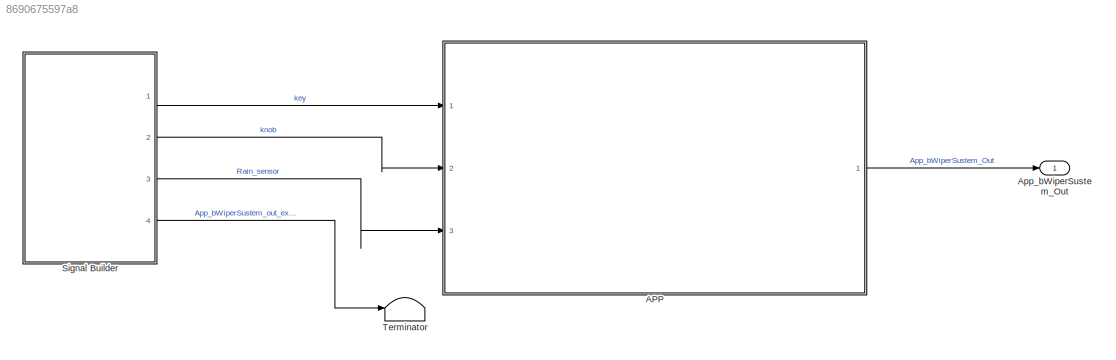
MODEL slx_8690675597a8
KIND model
CONFIG AbsTol = auto
CONFIG EnableMultiTasking = off
CONFIG FixedStep = 1e-3
CONFIG MaxStep = auto
CONFIG MinStep = auto
CONFIG RelTol = 1e-3
CONFIG SampleTimeConstraint = Unconstrained
CONFIG SolverName = FixedStepDiscrete
CONFIG StartTime = 0.0
CONFIG StopTime = 40
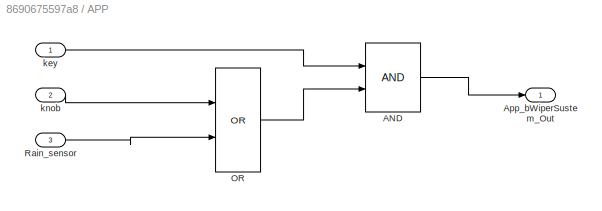
BLOCK [SubSystem] APP
  Ports = [3, 1]
  RequestExecContextInheritance = off
BLOCK [Logic] APP/AND
  AllPortsSameDT = off
  OutDataTypeStr = boolean
  Ports = [2, 1]
BLOCK [Outport] APP/App_bWiperSustem_Out
BLOCK [Logic] APP/OR
  AllPortsSameDT = off
  Operator = OR
  OutDataTypeStr = boolean
  Ports = [2, 1]
BLOCK [Inport] APP/Rain_sensor
  Port = 3
BLOCK [Inport] APP/key
BLOCK [Inport] APP/knob
  Port = 2
BLOCK [Outport] App_bWiperSustem_Out
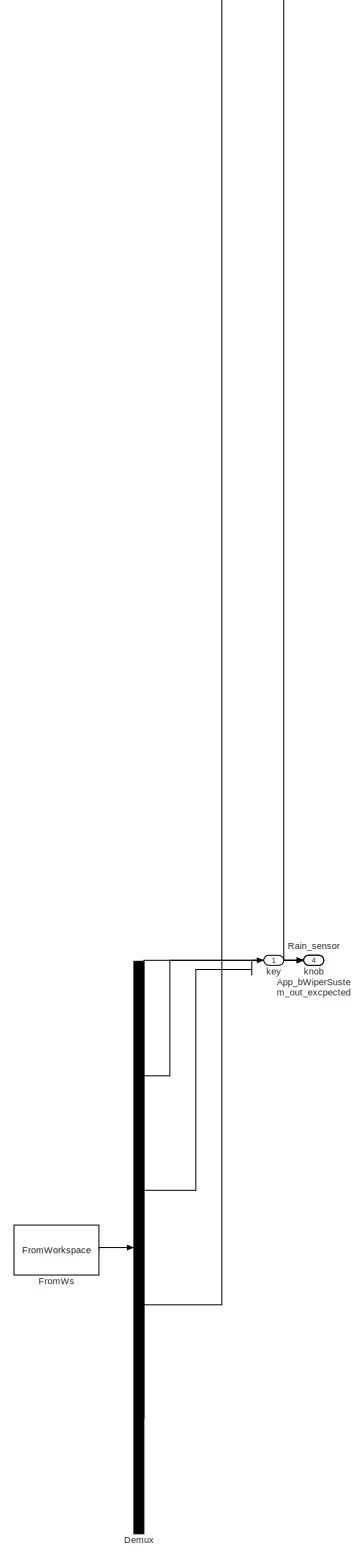
[diagram: Signal Builder - part 1/1, full width, bottom band]
BLOCK [SubSystem] Signal Builder
  ClipboardFcn = sigbuilder_block('clipboard');
  CloseFcn = sigbuilder_block('close');
  ContinueFcn = sigbuilder_block('continue');
  CopyFcn = sigbuilder_block('copy');
  DeleteFcn = sigbuilder_block('delete');
  LoadFcn = sigbuilder_block('load');
  MaskHideContents = on
  ModelCloseFcn = sigbuilder_block('modelClose');
  NameChangeFcn = sigbuilder_block('namechange');
  OpenFcn = sigbuilder_block('open',[60 102 550.8 400.2 ]);
  PauseFcn = sigbuilder_block('pause');
  Ports = [0, 4]
  PreSaveFcn = sigbuilder_block('preSave');
  RequestExecContextInheritance = off
  StartFcn = sigbuilder_block('start');
  StopFcn = sigbuilder_block('stop');
  Tag = STV Subsys
BLOCK [Outport] Signal Builder/App_bWiperSustem_out_excpected
  Port = 4
  Tag = STV Outport
BLOCK [Demux] Signal Builder/Demux
  DisplayOption = none
  Ports = [1, 4]
  Tag = STV Demux
BLOCK [FromWorkspace] Signal Builder/FromWs
  Tag = STV FromWs
  VariableName = tuvar
BLOCK [Outport] Signal Builder/Rain_sensor
  Port = 3
  Tag = STV Outport
BLOCK [Outport] Signal Builder/key
  Tag = STV Outport
BLOCK [Outport] Signal Builder/knob
  Port = 2
  Tag = STV Outport
BLOCK [Terminator] Terminator
LINE APP/AND:1 -> APP/App_bWiperSustem_Out:1
LINE APP/OR:1 -> APP/AND:2
LINE APP/Rain_sensor:1 -> APP/OR:2
LINE APP/key:1 -> APP/AND:1
LINE APP/knob:1 -> APP/OR:1
LINE APP:1 -> App_bWiperSustem_Out:1
LINE Signal Builder:1 -> APP:1
LINE Signal Builder:2 -> APP:2
LINE Signal Builder:3 -> APP:3
LINE Signal Builder:4 -> Terminator:1
